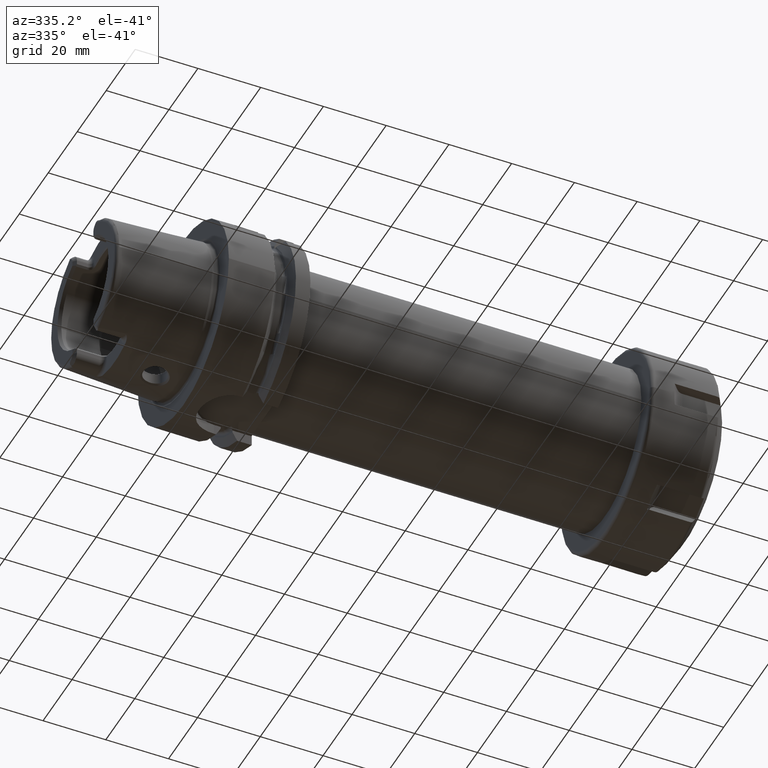
[diagram: clean part render]
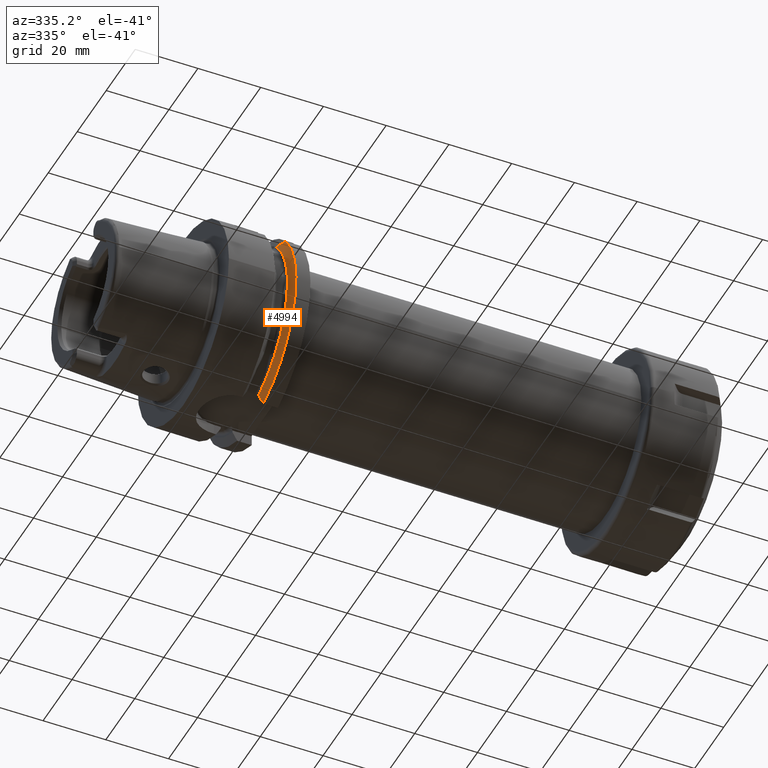
[diagram: same view with one face highlighted and labeled with its STEP entity id]
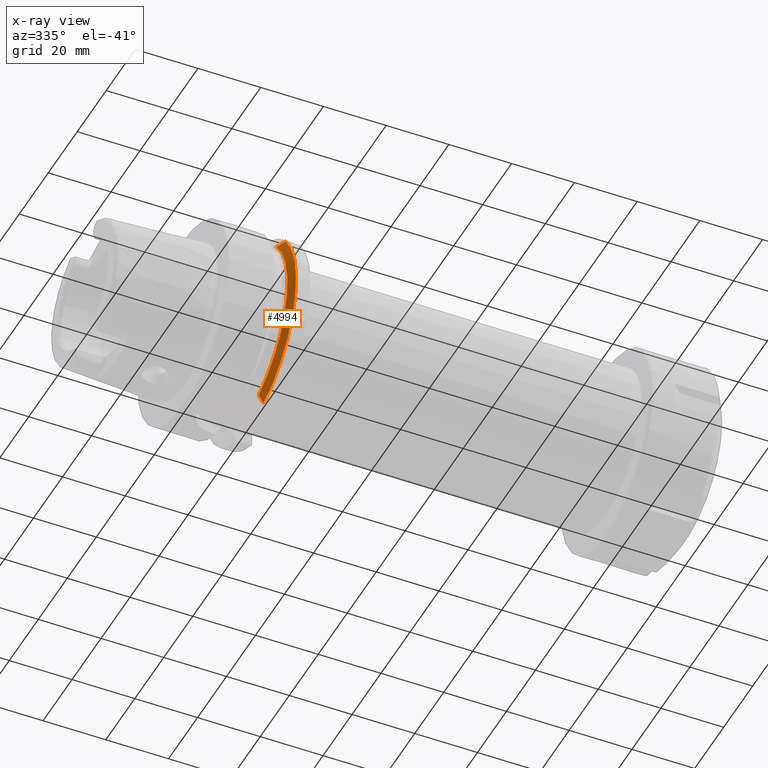
[diagram: x-ray of the same camera — body ghosted, the highlighted face saturated]
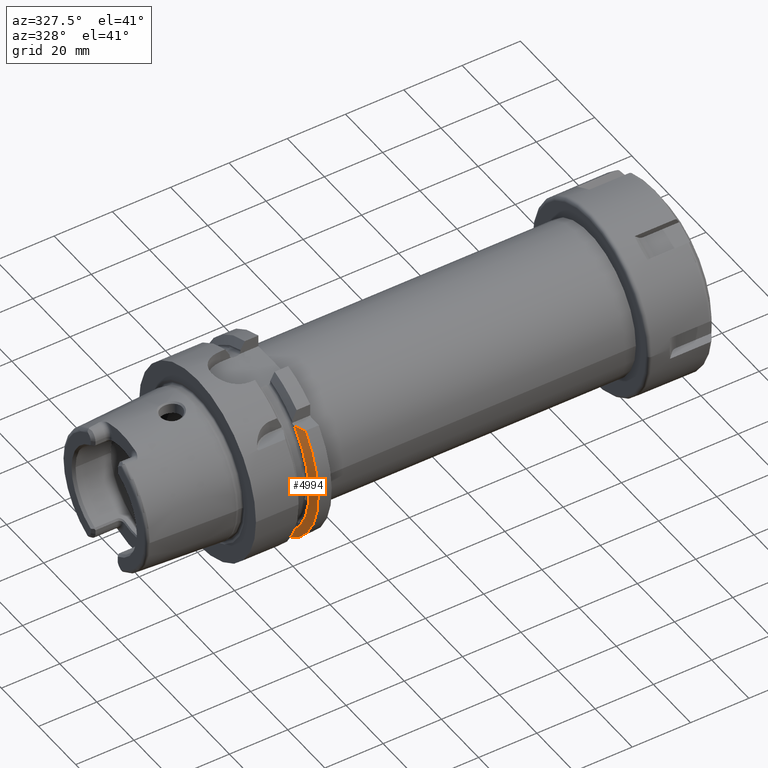
[diagram: same view with one face highlighted and labeled with its STEP entity id]
A machine part, auxiliary view. The second image highlights one B-rep face of the part: STEP entity #4994.
The next image is the same camera in x-ray: the body ghosted, the highlighted face saturated — about 0% of this face is hidden behind the body in this view.
A second angle (auxiliary view) of the same face is appended — the face is thin or edge-on in the first view.
In plain terms, the highlighted conical surface has half-angle 60 deg.
Its self-contained STEP definition (entity closure, byte-faithful):
#1797=CARTESIAN_POINT('',(1.9875E1,-2.100115501712E1,1.985E1));
#1798=CARTESIAN_POINT('',(2.002615778083E1,-2.136140971936E1,1.985E1));
#1799=CARTESIAN_POINT('',(2.033884699379E1,-2.209786160622E1,1.985E1));
#1800=CARTESIAN_POINT('',(2.083744118214E1,-2.324577082409E1,1.985E1));
#1801=CARTESIAN_POINT('',(2.119367380645E1,-2.404863363206E1,1.985E1));
#1802=CARTESIAN_POINT('',(2.137749907476E1,-2.445868966237E1,1.985E1));
#1804=CARTESIAN_POINT('',(2.137749907476E1,0.E0,0.E0));
#1805=DIRECTION('',(1.E0,0.E0,0.E0));
#1806=DIRECTION('',(0.E0,-7.764663384879E-1,6.301587301587E-1));
#1807=AXIS2_PLACEMENT_3D('',#1804,#1805,#1806);
#1809=CARTESIAN_POINT('',(1.9875E1,-9.0175E0,-2.745461174016E1));
#1810=CARTESIAN_POINT('',(2.003399901875E1,-9.0175E0,-2.774448053791E1));
#1811=CARTESIAN_POINT('',(2.035729051151E1,-9.0175E0,-2.833297398512E1));
#1812=CARTESIAN_POINT('',(2.085789481016E1,-9.0175E0,-2.924158789478E1));
#1813=CARTESIAN_POINT('',(2.120250873981E1,-9.0175E0,-2.986536377611E1));
#1814=CARTESIAN_POINT('',(2.137749907476E1,-9.0175E0,-3.018169467989E1));
#1816=CARTESIAN_POINT('',(1.9875E1,0.E0,0.E0));
#1817=DIRECTION('',(-1.E0,0.E0,0.E0));
#1818=DIRECTION('',(0.E0,-3.120501867909E-1,-9.500656192726E-1));
#1819=AXIS2_PLACEMENT_3D('',#1816,#1817,#1818);
#2995=CARTESIAN_POINT('',(1.9875E1,-9.0175E0,-2.745461174016E1));
#2997=VERTEX_POINT('',#2995);
#3000=VERTEX_POINT('',#1814);
#3007=CARTESIAN_POINT('',(2.137749907476E1,-2.445868966237E1,1.985E1));
#3009=VERTEX_POINT('',#3007);
#3023=CARTESIAN_POINT('',(1.9875E1,-2.100115501712E1,1.985E1));
#3025=VERTEX_POINT('',#3023);
#4982=CARTESIAN_POINT('',(2.062624953738E1,0.E0,0.E0));
#4983=DIRECTION('',(1.E0,0.E0,0.E0));
#4984=DIRECTION('',(0.E0,-1.E0,0.E0));
#4985=AXIS2_PLACEMENT_3D('',#4982,#4983,#4984);
#4986=CONICAL_SURFACE('',#4985,3.019879763210E1,6.E1);
#4987=ORIENTED_EDGE('',*,*,#4863,.T.);
#4988=ORIENTED_EDGE('',*,*,#4776,.T.);
#4990=ORIENTED_EDGE('',*,*,#4989,.F.);
#4991=ORIENTED_EDGE('',*,*,#4949,.T.);
#4992=EDGE_LOOP('',(#4987,#4988,#4990,#4991));
#4993=FACE_OUTER_BOUND('',#4992,.F.);
#4994=ADVANCED_FACE('',(#4993),#4986,.T.);
#1803=B_SPLINE_CURVE_WITH_KNOTS('',3,(#1797,#1798,#1799,#1800,#1801,#1802),
.UNSPECIFIED.,.F.,.F.,(4,1,1,4),(0.E0,3.333333333333E-1,6.666666666667E-1,1.E0),
.UNSPECIFIED.);
#1808=CIRCLE('',#1807,3.15E1);
#1815=B_SPLINE_CURVE_WITH_KNOTS('',3,(#1809,#1810,#1811,#1812,#1813,#1814),
.UNSPECIFIED.,.F.,.F.,(4,1,1,4),(0.E0,3.333333333333E-1,6.666666666667E-1,1.E0),
.UNSPECIFIED.);
#1820=CIRCLE('',#1819,2.889759526419E1);
#4776=EDGE_CURVE('',#3009,#3000,#1808,.T.);
#4863=EDGE_CURVE('',#3025,#3009,#1803,.T.);
#4949=EDGE_CURVE('',#2997,#3025,#1820,.T.);
#4989=EDGE_CURVE('',#2997,#3000,#1815,.T.);